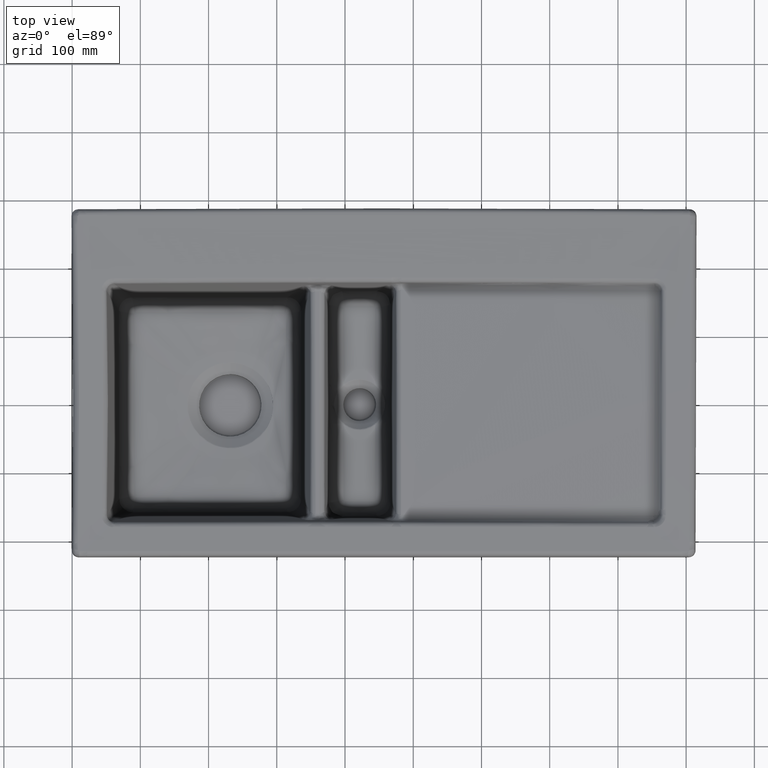
[diagram: clean part render]
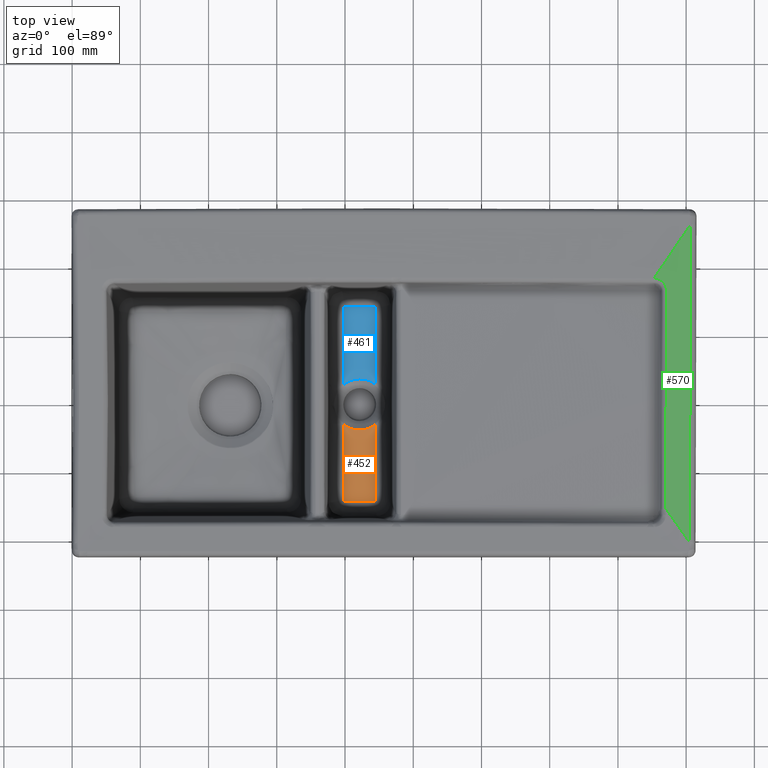
[diagram: same view with three faces highlighted in distinct colors, each labeled with its STEP entity id]
A machine part, top view with three faces highlighted in distinct colors.
Their STEP definitions:

[orange] entity #452 — the highlighted face is a freeform B-spline surface patch.
#258=(
BOUNDED_CURVE()
B_SPLINE_CURVE(3,(#6108,#6109,#6110,#6111),.UNSPECIFIED.,.F.,.F.)
B_SPLINE_CURVE_WITH_KNOTS((4,4),(0.,1.),.UNSPECIFIED.)
CURVE()
GEOMETRIC_REPRESENTATION_ITEM()
RATIONAL_B_SPLINE_CURVE((1.,1.,1.,1.))
REPRESENTATION_ITEM('')
);
#265=(
BOUNDED_CURVE()
B_SPLINE_CURVE(3,(#7132,#7133,#7134,#7135),.UNSPECIFIED.,.F.,.F.)
B_SPLINE_CURVE_WITH_KNOTS((4,4),(0.,1.),.UNSPECIFIED.)
CURVE()
GEOMETRIC_REPRESENTATION_ITEM()
RATIONAL_B_SPLINE_CURVE((1.,1.,1.,1.))
REPRESENTATION_ITEM('')
);
#452=ADVANCED_FACE('',(#908),#757,.F.);
#757=B_SPLINE_SURFACE_WITH_KNOTS('',3,1,((#7439,#7440),(#7441,#7442),(#7443,
#7444),(#7445,#7446),(#7447,#7448),(#7449,#7450),(#7451,#7452)),
 .UNSPECIFIED.,.F.,.F.,.F.,(4,1,1,1,4),(2,2),(0.,0.25,0.5,0.75,1.),(0.,
1.),.UNSPECIFIED.);
#908=FACE_OUTER_BOUND('',#1229,.T.);
#1229=EDGE_LOOP('',(#1605,#1606,#1607,#1608,#1609,#1610));
#1605=ORIENTED_EDGE('',*,*,#3626,.T.);
#1606=ORIENTED_EDGE('',*,*,#3627,.T.);
#1607=ORIENTED_EDGE('',*,*,#3613,.F.);
#1608=ORIENTED_EDGE('',*,*,#3601,.F.);
#1609=ORIENTED_EDGE('',*,*,#3590,.F.);
#1610=ORIENTED_EDGE('',*,*,#3628,.T.);
#3112=VERTEX_POINT('',#6107);
#3113=VERTEX_POINT('',#6112);
#3121=VERTEX_POINT('',#6542);
#3130=VERTEX_POINT('',#7136);
#3141=VERTEX_POINT('',#7429);
#3142=VERTEX_POINT('',#7430);
#3590=EDGE_CURVE('',#3112,#3113,#258,.T.);
#3601=EDGE_CURVE('',#3113,#3121,#4372,.T.);
#3613=EDGE_CURVE('',#3121,#3130,#265,.T.);
#3626=EDGE_CURVE('',#3141,#3142,#4392,.T.);
#3627=EDGE_CURVE('',#3142,#3130,#4393,.T.);
#3628=EDGE_CURVE('',#3112,#3141,#4394,.T.);
#4372=B_SPLINE_CURVE_WITH_KNOTS('',5,(#6523,#6524,#6525,#6526,#6527,#6528,
#6529,#6530,#6531,#6532,#6533,#6534,#6535,#6536,#6537,#6538,#6539,#6540,
#6541),.UNSPECIFIED.,.F.,.F.,(6,1,1,1,1,1,1,1,1,1,1,1,1,1,6),(0.,0.0248236561705599,
0.134479540551747,0.280687386393331,0.390343270774518,0.499999155155705,
0.609655039536893,0.682758962457684,0.792414846838872,0.847242789029465,
0.883794750489861,0.938622692680455,0.966036663775752,0.98431264450595,
1.),.UNSPECIFIED.);
#4392=B_SPLINE_CURVE_WITH_KNOTS('',3,(#7422,#7423,#7424,#7425,#7426,#7427,
#7428),.UNSPECIFIED.,.F.,.F.,(4,1,1,1,4),(0.,0.226356920964131,0.499994669121998,
0.773632417279865,1.),.UNSPECIFIED.);
#4393=B_SPLINE_CURVE_WITH_KNOTS('',3,(#7431,#7432,#7433,#7434),
 .UNSPECIFIED.,.F.,.F.,(4,4),(0.,1.),.UNSPECIFIED.);
#4394=B_SPLINE_CURVE_WITH_KNOTS('',3,(#7435,#7436,#7437,#7438),
 .UNSPECIFIED.,.F.,.F.,(4,4),(0.,1.),.UNSPECIFIED.);
#6107=CARTESIAN_POINT('',(-101.719841872321,-140.408159309172,-122.140214535081));
#6108=CARTESIAN_POINT('',(-101.719841874572,-140.408190980881,-122.140212309552));
#6109=CARTESIAN_POINT('',(-101.719841874535,-103.440049938518,-124.737913268294));
#6110=CARTESIAN_POINT('',(-101.719841874454,-66.471908895654,-127.335614227072));
#6111=CARTESIAN_POINT('',(-101.719841874425,-29.5037678534039,-129.933315185804));
#6112=CARTESIAN_POINT('',(-101.719647689132,-29.4996865122051,-129.924683812961));
#6523=CARTESIAN_POINT('',(-101.719396906025,-29.503738861944,-129.912881583443));
#6524=CARTESIAN_POINT('',(-101.513040038746,-29.6665108037779,-129.917144328314));
#6525=CARTESIAN_POINT('',(-100.38764990228,-30.5377226402636,-129.93845606353));
#6526=CARTESIAN_POINT('',(-97.9565595011306,-32.2350822797533,-129.961304322471));
#6527=CARTESIAN_POINT('',(-94.3758613946092,-34.2258684326724,-129.915966814488));
#6528=CARTESIAN_POINT('',(-89.6129324180382,-36.1084192282851,-129.954515718595));
#6529=CARTESIAN_POINT('',(-83.9270115324353,-37.3258698780678,-129.939347269849));
#6530=CARTESIAN_POINT('',(-78.8982897365385,-37.6447472088639,-129.941538635179));
#6531=CARTESIAN_POINT('',(-74.2164643475943,-37.3979328126476,-129.952349099692));
#6532=CARTESIAN_POINT('',(-69.8240288298119,-36.5996483680741,-129.928943002502));
#6533=CARTESIAN_POINT('',(-66.1378732482018,-35.4839542034875,-129.952353138064));
#6534=CARTESIAN_POINT('',(-63.0214829223471,-34.2036803704275,-129.929079605221));
#6535=CARTESIAN_POINT('',(-60.4055503475251,-32.8558089749276,-129.947937080946));
#6536=CARTESIAN_POINT('',(-58.6795984911942,-31.825794129689,-129.928476093165));
#6537=CARTESIAN_POINT('',(-57.3377390143909,-30.9398988235388,-129.942231116648));
#6538=CARTESIAN_POINT('',(-56.3436621743283,-30.2198715028572,-129.930499859026));
#6539=CARTESIAN_POINT('',(-55.8256276965607,-29.8287252216741,-129.933355099622));
#6540=CARTESIAN_POINT('',(-55.5414455321914,-29.6086068407538,-129.93348598279));
#6541=CARTESIAN_POINT('',(-55.4107538261707,-29.5061128856934,-129.932866854547));
#6542=CARTESIAN_POINT('',(-55.411650988735,-29.4951365362032,-129.933839986546));
#7132=CARTESIAN_POINT('',(-55.412000742716,-29.5045205520715,-129.933259226174));
#7133=CARTESIAN_POINT('',(-55.412000742627,-66.4708160216278,-127.335568520409));
#7134=CARTESIAN_POINT('',(-55.4120007424201,-103.437111491178,-124.737877814645));
#7135=CARTESIAN_POINT('',(-55.4120007425567,-140.403406960786,-122.140187108873));
#7136=CARTESIAN_POINT('',(-55.4120007452332,-140.403375301915,-122.140189333597));
#7422=CARTESIAN_POINT('',(-99.719502961633,-142.403203116575,-122.));
#7423=CARTESIAN_POINT('',(-96.5272959914935,-142.40263337959,-122.));
#7424=CARTESIAN_POINT('',(-89.476102327077,-142.401479354422,-122.));
#7425=CARTESIAN_POINT('',(-78.5659217659005,-142.400050750754,-122.));
#7426=CARTESIAN_POINT('',(-67.6555906480263,-142.399012889387,-122.));
#7427=CARTESIAN_POINT('',(-60.6042462623959,-142.398572855617,-122.));
#7428=CARTESIAN_POINT('',(-57.4118887217839,-142.398420931681,-122.));
#7429=CARTESIAN_POINT('',(-99.7195763630927,-142.403218675193,-122.000000000428));
#7430=CARTESIAN_POINT('',(-57.4118160950062,-142.39843631187,-122.000000000418));
#7431=CARTESIAN_POINT('',(-57.411756721666,-142.398420873461,-122.00000000369));
#7432=CARTESIAN_POINT('',(-56.3108036287416,-142.397950043577,-122.000029728498));
#7433=CARTESIAN_POINT('',(-55.4123820108904,-141.502571980109,-122.062947025583));
#7434=CARTESIAN_POINT('',(-55.4120007649059,-140.403406956622,-122.14018710918));
#7435=CARTESIAN_POINT('',(-101.719841852431,-140.408190976758,-122.140212309858));
#7436=CARTESIAN_POINT('',(-101.719461106688,-141.506544884083,-122.063032767222));
#7437=CARTESIAN_POINT('',(-100.821750298017,-142.402981049948,-122.000029748973));
#7438=CARTESIAN_POINT('',(-99.7196349244578,-142.403203088183,-122.00000000369));
#7439=CARTESIAN_POINT('',(-101.719841874444,-28.6753583609156,-129.991526393403));
#7440=CARTESIAN_POINT('',(-101.719841874559,-142.403566321501,-122.));
#7441=CARTESIAN_POINT('',(-98.7215112826815,-31.1032696140878,-129.991526393403));
#7442=CARTESIAN_POINT('',(-97.8608552848126,-142.402853698149,-122.));
#7443=CARTESIAN_POINT('',(-91.5837716490164,-35.2858162236491,-129.991526393403));
#7444=CARTESIAN_POINT('',(-90.1428819891537,-142.401566664056,-122.));
#7445=CARTESIAN_POINT('',(-78.565921309071,-37.6686288022078,-129.991526393403));
#7446=CARTESIAN_POINT('',(-78.5659217659005,-142.400050750754,-122.));
#7447=CARTESIAN_POINT('',(-65.5480709689097,-35.2858134514791,-129.991526393403));
#7448=CARTESIAN_POINT('',(-66.9889613316171,-142.398949475289,-122.));
#7449=CARTESIAN_POINT('',(-58.4103313348108,-31.1032649938095,-129.991526393403));
#7450=CARTESIAN_POINT('',(-59.2709876138979,-142.39849171687,-122.));
#7451=CARTESIAN_POINT('',(-55.4120007427582,-28.6753528165848,-129.991526393403));
#7452=CARTESIAN_POINT('',(-55.4120007427782,-142.398331943967,-122.));

[blue] entity #461 — the highlighted face is a freeform B-spline surface patch.
#261=(
BOUNDED_CURVE()
B_SPLINE_CURVE(3,(#6482,#6483,#6484,#6485),.UNSPECIFIED.,.F.,.F.)
B_SPLINE_CURVE_WITH_KNOTS((4,4),(0.,1.),.UNSPECIFIED.)
CURVE()
GEOMETRIC_REPRESENTATION_ITEM()
RATIONAL_B_SPLINE_CURVE((1.,1.,1.,1.))
REPRESENTATION_ITEM('')
);
#262=(
BOUNDED_CURVE()
B_SPLINE_CURVE(3,(#6920,#6921,#6922,#6923),.UNSPECIFIED.,.F.,.F.)
B_SPLINE_CURVE_WITH_KNOTS((4,4),(0.,1.),.UNSPECIFIED.)
CURVE()
GEOMETRIC_REPRESENTATION_ITEM()
RATIONAL_B_SPLINE_CURVE((1.,1.,1.,1.))
REPRESENTATION_ITEM('')
);
#461=ADVANCED_FACE('',(#917),#762,.T.);
#762=B_SPLINE_SURFACE_WITH_KNOTS('',3,1,((#8022,#8023),(#8024,#8025),(#8026,
#8027),(#8028,#8029),(#8030,#8031),(#8032,#8033),(#8034,#8035)),
 .UNSPECIFIED.,.F.,.F.,.F.,(4,1,1,1,4),(2,2),(0.,0.25,0.5,0.75,1.),(0.,
1.),.UNSPECIFIED.);
#917=FACE_OUTER_BOUND('',#1238,.T.);
#1238=EDGE_LOOP('',(#1645,#1646,#1647,#1648,#1649,#1650));
#1645=ORIENTED_EDGE('',*,*,#3599,.F.);
#1646=ORIENTED_EDGE('',*,*,#3605,.F.);
#1647=ORIENTED_EDGE('',*,*,#3607,.F.);
#1648=ORIENTED_EDGE('',*,*,#3647,.T.);
#1649=ORIENTED_EDGE('',*,*,#3648,.T.);
#1650=ORIENTED_EDGE('',*,*,#3646,.F.);
#3119=VERTEX_POINT('',#6481);
#3120=VERTEX_POINT('',#6486);
#3124=VERTEX_POINT('',#6584);
#3126=VERTEX_POINT('',#6919);
#3151=VERTEX_POINT('',#7891);
#3153=VERTEX_POINT('',#8014);
#3599=EDGE_CURVE('',#3119,#3120,#261,.T.);
#3605=EDGE_CURVE('',#3124,#3119,#4376,.T.);
#3607=EDGE_CURVE('',#3126,#3124,#262,.T.);
#3646=EDGE_CURVE('',#3120,#3151,#4408,.T.);
#3647=EDGE_CURVE('',#3126,#3153,#4409,.T.);
#3648=EDGE_CURVE('',#3153,#3151,#4410,.T.);
#4376=B_SPLINE_CURVE_WITH_KNOTS('',5,(#6585,#6586,#6587,#6588,#6589,#6590,
#6591,#6592,#6593,#6594,#6595,#6596,#6597,#6598,#6599,#6600,#6601,#6602,
#6603,#6604,#6605,#6606,#6607,#6608,#6609,#6610,#6611),.UNSPECIFIED.,.F.,
 .F.,(6,1,1,1,1,1,1,1,1,5,1,1,1,1,1,1,1,1,6),(0.,0.0156867683323248,0.033960504964547,
0.0613711099128803,0.116192319809547,0.152739793073991,0.207561002970658,
0.317203422763991,0.39029836929288,0.499940789086214,0.646130682143991,
0.71922562867288,0.792320575201769,0.847141785098436,0.88368925836288,0.938510468259547,
0.96592107320788,0.984194809840102,1.),.UNSPECIFIED.);
#4408=B_SPLINE_CURVE_WITH_KNOTS('',3,(#7902,#7903,#7904,#7905,#7906,#7907,
#7908,#7909,#7910),.UNSPECIFIED.,.F.,.F.,(4,1,1,1,1,1,4),(0.,0.125,0.25,
0.375,0.5,0.75,1.),.UNSPECIFIED.);
#4409=B_SPLINE_CURVE_WITH_KNOTS('',3,(#8010,#8011,#8012,#8013),
 .UNSPECIFIED.,.F.,.F.,(4,4),(0.,1.),.UNSPECIFIED.);
#4410=B_SPLINE_CURVE_WITH_KNOTS('',3,(#8015,#8016,#8017,#8018,#8019,#8020,
#8021),.UNSPECIFIED.,.F.,.F.,(4,1,1,1,4),(0.,0.226349825436941,0.499982314853168,
0.773614804269395,1.),.UNSPECIFIED.);
#6481=CARTESIAN_POINT('',(-101.721763070381,29.4994588458397,-129.9340223686));
#6482=CARTESIAN_POINT('',(-101.719841874245,29.5040029903322,-129.933869253652));
#6483=CARTESIAN_POINT('',(-101.719841877377,66.7998282456014,-127.335561143578));
#6484=CARTESIAN_POINT('',(-101.719841880553,104.095653500487,-124.737253033529));
#6485=CARTESIAN_POINT('',(-101.719841883684,141.391478755678,-122.138944923459));
#6486=CARTESIAN_POINT('',(-101.719841881399,141.391447096811,-122.138947129055));
#6584=CARTESIAN_POINT('',(-55.4111954780957,29.5038953414851,-129.933749624806));
#6585=CARTESIAN_POINT('',(-55.4101632778936,29.5067550765156,-129.933379861192));
#6586=CARTESIAN_POINT('',(-55.5407338151681,29.6094285203575,-129.933971599667));
#6587=CARTESIAN_POINT('',(-55.8245446357716,29.8300498003373,-129.933751005369));
#6588=CARTESIAN_POINT('',(-56.3415489849454,30.2225939799143,-129.930657140301));
#6589=CARTESIAN_POINT('',(-57.3332943137968,30.9462978517093,-129.942349491628));
#6590=CARTESIAN_POINT('',(-58.6773264242563,31.829595972303,-129.928415497302));
#6591=CARTESIAN_POINT('',(-60.4016653496536,32.86246864426,-129.948166474974));
#6592=CARTESIAN_POINT('',(-63.021516199261,34.2048209633518,-129.929217562027));
#6593=CARTESIAN_POINT('',(-66.1354676160631,35.488935146331,-129.952800047484));
#6594=CARTESIAN_POINT('',(-69.826516883535,36.5958851963371,-129.929299096004));
#6595=CARTESIAN_POINT('',(-73.1627953848058,37.201894966163,-129.948277584383));
#6596=CARTESIAN_POINT('',(-75.8740735091135,37.4455378298082,-129.946318231546));
#6597=CARTESIAN_POINT('',(-77.5562896005995,37.5037930966284,-129.944899012501));
#6598=CARTESIAN_POINT('',(-78.5659213086465,37.5048104812571,-129.944305147031));
#6599=CARTESIAN_POINT('',(-79.9120969193759,37.5061669940955,-129.943513326404));
#6600=CARTESIAN_POINT('',(-81.9321658105511,37.4177063621174,-129.943012704685));
#6601=CARTESIAN_POINT('',(-84.6609216871854,37.1181420791534,-129.946049954968));
#6602=CARTESIAN_POINT('',(-88.0174923597861,36.4220071747067,-129.93529584078));
#6603=CARTESIAN_POINT('',(-91.6868194596184,35.2025670958994,-129.948527787882));
#6604=CARTESIAN_POINT('',(-94.4469962337411,34.0280307029931,-129.930976569616));
#6605=CARTESIAN_POINT('',(-96.7258512031485,32.8546015445686,-129.949938400319));
#6606=CARTESIAN_POINT('',(-98.4516398200546,31.825206143404,-129.928033411179));
#6607=CARTESIAN_POINT('',(-99.7951889780643,30.9389866000143,-129.943743662952));
#6608=CARTESIAN_POINT('',(-100.790123360086,30.2183807979451,-129.930573885425));
#6609=CARTESIAN_POINT('',(-101.30924843247,29.8264762792645,-129.933807557509));
#6610=CARTESIAN_POINT('',(-101.594444546119,29.6055497624545,-129.93406432257));
#6611=CARTESIAN_POINT('',(-101.726126812027,29.5022488644301,-129.933456707269));
#6919=CARTESIAN_POINT('',(-55.4120007452095,141.400896839059,-122.138993325916));
#6920=CARTESIAN_POINT('',(-55.4120007429122,141.400929692985,-122.138991037268));
#6921=CARTESIAN_POINT('',(-55.4120007429319,104.102091685333,-124.737276168924));
#6922=CARTESIAN_POINT('',(-55.4120007429766,66.8032536774609,-127.335561300595));
#6923=CARTESIAN_POINT('',(-55.4120007429767,29.5044156699205,-129.933846432241));
#7891=CARTESIAN_POINT('',(-99.7206211879087,143.386559231637,-122.000000000636));
#7902=CARTESIAN_POINT('',(-101.719841883378,141.391478751783,-122.13894492373));
#7903=CARTESIAN_POINT('',(-101.719796160576,141.522119603666,-122.129843534669));
#7904=CARTESIAN_POINT('',(-101.693792768427,141.78330906183,-122.111664714535));
#7905=CARTESIAN_POINT('',(-101.580289507033,142.160504180134,-122.085439387113));
#7906=CARTESIAN_POINT('',(-101.395525991175,142.508798142204,-122.061227960748));
#7907=CARTESIAN_POINT('',(-101.063623433792,142.916006591488,-122.032898457463));
#7908=CARTESIAN_POINT('',(-100.506080572074,143.282829558101,-122.007273354005));
#7909=CARTESIAN_POINT('',(-99.9825923642268,143.386342574508,-122.000006840227));
#7910=CARTESIAN_POINT('',(-99.7206723655752,143.386528564325,-121.99999999999));
#8010=CARTESIAN_POINT('',(-55.4120007658769,141.400929688476,-122.138991037599));
#8011=CARTESIAN_POINT('',(-55.4123820489301,142.500263995609,-122.062410282929));
#8012=CARTESIAN_POINT('',(-56.3109256587701,143.395695563886,-122.000029517203));
#8013=CARTESIAN_POINT('',(-57.41200892028,143.396027313644,-122.000000003688));
#8014=CARTESIAN_POINT('',(-57.4120631925275,143.395983628543,-122.000000000818));
#8015=CARTESIAN_POINT('',(-57.412141725927,143.39602735548,-122.));
#8016=CARTESIAN_POINT('',(-60.6038298963109,143.395774032877,-122.));
#8017=CARTESIAN_POINT('',(-67.6541483392831,143.394950540795,-122.));
#8018=CARTESIAN_POINT('',(-78.5637968647959,143.392853633783,-122.));
#8019=CARTESIAN_POINT('',(-89.4748682688088,143.389961022736,-122.));
#8020=CARTESIAN_POINT('',(-96.5273740393778,143.387683668943,-122.));
#8021=CARTESIAN_POINT('',(-99.7205491601054,143.38657949935,-122.));
#8022=CARTESIAN_POINT('',(-55.4120007429146,143.396170369374,-122.));
#8023=CARTESIAN_POINT('',(-55.4120007429564,28.6674301188065,-129.992151924556));
#8024=CARTESIAN_POINT('',(-59.2703560103238,143.395925030638,-122.));
#8025=CARTESIAN_POINT('',(-58.4102633481168,31.0955319291932,-129.992151924556));
#8026=CARTESIAN_POINT('',(-66.9873601101577,143.395078701928,-122.));
#8027=CARTESIAN_POINT('',(-65.547956613534,35.2784064576841,-129.992151924556));
#8028=CARTESIAN_POINT('',(-78.5637968647959,143.392853633783,-122.));
#8029=CARTESIAN_POINT('',(-78.5659192244427,37.6614049721977,-129.992151924556));
#8030=CARTESIAN_POINT('',(-90.1412141341624,143.389784369194,-122.));
#8031=CARTESIAN_POINT('',(-91.5838827972588,35.2784012639661,-129.992151924556));
#8032=CARTESIAN_POINT('',(-97.860179263453,143.387249647594,-122.));
#8033=CARTESIAN_POINT('',(-98.7215779864876,31.0955234186726,-129.992151924556));
#8034=CARTESIAN_POINT('',(-101.719841883833,143.385878713597,-122.));
#8035=CARTESIAN_POINT('',(-101.719841874187,28.6674200227238,-129.992151924556));

[green] entity #570 — the highlighted face is a freeform B-spline surface patch.
#340=(
BOUNDED_CURVE()
B_SPLINE_CURVE(3,(#12311,#12312,#12313,#12314,#12315,#12316,#12317,#12318,
#12319,#12320,#12321,#12322,#12323,#12324),.UNSPECIFIED.,.F.,.F.)
B_SPLINE_CURVE_WITH_KNOTS((4,2,2,2,2,2,4),(0.,0.125,0.25,0.5,0.75,0.875,
1.),.UNSPECIFIED.)
CURVE()
GEOMETRIC_REPRESENTATION_ITEM()
RATIONAL_B_SPLINE_CURVE((1.,1.,1.,1.,1.,1.,1.,1.,1.,1.,1.,1.,1.,1.))
REPRESENTATION_ITEM('')
);
#342=(
BOUNDED_CURVE()
B_SPLINE_CURVE(3,(#12371,#12372,#12373,#12374,#12375,#12376,#12377,#12378,
#12379,#12380),.UNSPECIFIED.,.F.,.F.)
B_SPLINE_CURVE_WITH_KNOTS((4,2,2,2,4),(0.,0.250000000000001,0.375000000000001,
0.500000000000001,1.),.UNSPECIFIED.)
CURVE()
GEOMETRIC_REPRESENTATION_ITEM()
RATIONAL_B_SPLINE_CURVE((1.,1.,1.,1.,1.,1.,1.,1.,1.,1.))
REPRESENTATION_ITEM('')
);
#343=(
BOUNDED_CURVE()
B_SPLINE_CURVE(3,(#12382,#12383,#12384,#12385),.UNSPECIFIED.,.F.,.F.)
B_SPLINE_CURVE_WITH_KNOTS((4,4),(0.,1.),.UNSPECIFIED.)
CURVE()
GEOMETRIC_REPRESENTATION_ITEM()
RATIONAL_B_SPLINE_CURVE((1.,1.,1.,1.))
REPRESENTATION_ITEM('')
);
#570=ADVANCED_FACE('',(#1025),#803,.T.);
#803=B_SPLINE_SURFACE_WITH_KNOTS('',3,1,((#13382,#13383),(#13384,#13385),
(#13386,#13387),(#13388,#13389),(#13390,#13391),(#13392,#13393),(#13394,
#13395),(#13396,#13397),(#13398,#13399),(#13400,#13401),(#13402,#13403),
(#13404,#13405),(#13406,#13407),(#13408,#13409),(#13410,#13411),(#13412,
#13413),(#13414,#13415),(#13416,#13417),(#13418,#13419)),.UNSPECIFIED.,
 .F.,.F.,.F.,(4,1,1,1,1,1,1,1,1,1,1,1,1,1,1,1,4),(2,2),(0.,0.0260654083214512,
0.0936718462912706,0.12747506527618,0.16127828426109,0.195081503246,0.228884722230909,
0.262687941215819,0.296491160200729,0.364097598170548,0.499310474110187,
0.634523350049826,0.769736225989465,0.837342663959284,0.904949101929103,
0.972555539898923,1.),(0.,1.),.UNSPECIFIED.);
#1025=FACE_OUTER_BOUND('',#1348,.T.);
#1348=EDGE_LOOP('',(#2144,#2145,#2146,#2147,#2148,#2149));
#2144=ORIENTED_EDGE('',*,*,#3843,.F.);
#2145=ORIENTED_EDGE('',*,*,#3841,.F.);
#2146=ORIENTED_EDGE('',*,*,#3900,.T.);
#2147=ORIENTED_EDGE('',*,*,#3901,.T.);
#2148=ORIENTED_EDGE('',*,*,#3897,.F.);
#2149=ORIENTED_EDGE('',*,*,#3844,.F.);
#3260=VERTEX_POINT('',#12218);
#3261=VERTEX_POINT('',#12310);
#3262=VERTEX_POINT('',#12325);
#3263=VERTEX_POINT('',#12381);
#3295=VERTEX_POINT('',#13317);
#3297=VERTEX_POINT('',#13365);
#3841=EDGE_CURVE('',#3261,#3262,#340,.T.);
#3843=EDGE_CURVE('',#3262,#3263,#342,.T.);
#3844=EDGE_CURVE('',#3263,#3260,#343,.T.);
#3897=EDGE_CURVE('',#3260,#3295,#4564,.T.);
#3900=EDGE_CURVE('',#3261,#3297,#4567,.T.);
#3901=EDGE_CURVE('',#3297,#3295,#4568,.T.);
#4564=B_SPLINE_CURVE_WITH_KNOTS('',3,(#13312,#13313,#13314,#13315,#13316),
 .UNSPECIFIED.,.F.,.F.,(4,1,4),(0.,0.500003443657999,1.),.UNSPECIFIED.);
#4567=B_SPLINE_CURVE_WITH_KNOTS('',3,(#13361,#13362,#13363,#13364),
 .UNSPECIFIED.,.F.,.F.,(4,4),(0.,1.),.UNSPECIFIED.);
#4568=B_SPLINE_CURVE_WITH_KNOTS('',3,(#13366,#13367,#13368,#13369,#13370,
#13371,#13372,#13373,#13374,#13375,#13376,#13377,#13378,#13379,#13380,#13381),
 .UNSPECIFIED.,.F.,.F.,(4,2,2,2,2,2,2,4),(0.,0.125,0.25,0.5,0.75,0.8125,
0.875,1.),.UNSPECIFIED.);
#12218=CARTESIAN_POINT('',(352.877020419543,182.612049514514,-1.17300279970422));
#12310=CARTESIAN_POINT('',(370.200609025752,-154.963753242242,-0.428976760373357));
#12311=CARTESIAN_POINT('',(370.200460715452,-154.962535050789,-0.430924738893923));
#12312=CARTESIAN_POINT('',(370.239708189223,-141.67936665581,-0.197254158676335));
#12313=CARTESIAN_POINT('',(370.282052406876,-128.334245980281,0.0790681166048995));
#12314=CARTESIAN_POINT('',(370.362079086811,-101.671693026669,0.478673723965898));
#12315=CARTESIAN_POINT('',(370.401377578239,-88.3470690072719,0.63835897912898));
#12316=CARTESIAN_POINT('',(370.520503947291,-48.3655566203226,1.02773870786753));
#12317=CARTESIAN_POINT('',(370.599894197034,-21.7084321237972,1.1526597910208));
#12318=CARTESIAN_POINT('',(370.756721671459,31.6065436625468,1.11839687199155));
#12319=CARTESIAN_POINT('',(370.83424269657,58.2642479274439,0.95997125181238));
#12320=CARTESIAN_POINT('',(370.950526765843,98.2452344720003,0.522477328784162));
#12321=CARTESIAN_POINT('',(370.989557478513,111.573135159979,0.345714166109794));
#12322=CARTESIAN_POINT('',(371.065113679737,138.235182556852,-0.0996475798706851));
#12323=CARTESIAN_POINT('',(371.103712525354,151.559064310147,-0.38583378610891));
#12324=CARTESIAN_POINT('',(371.14289232539,164.833155336653,-0.592958659697426));
#12325=CARTESIAN_POINT('',(371.14289232539,164.833155336653,-0.592958659697427));
#12371=CARTESIAN_POINT('',(371.14289232539,164.833155336653,-0.59295865969743));
#12372=CARTESIAN_POINT('',(371.149869793643,167.197115731761,-0.629845177649138));
#12373=CARTESIAN_POINT('',(370.689398426371,169.497254096509,-0.672234134134189));
#12374=CARTESIAN_POINT('',(369.357238892527,172.720668821054,-0.741031252808693));
#12375=CARTESIAN_POINT('',(368.800042032592,173.762689694504,-0.765026018362008));
#12376=CARTESIAN_POINT('',(367.511980577132,175.689024146849,-0.813353888263778));
#12377=CARTESIAN_POINT('',(366.776899980598,176.585914670423,-0.837941022686392));
#12378=CARTESIAN_POINT('',(362.630847687248,180.727809277022,-0.96435638209342));
#12379=CARTESIAN_POINT('',(358.04975101196,182.621794695281,-1.06962405617827));
#12380=CARTESIAN_POINT('',(353.346847556061,182.61571197809,-1.16363289779154));
#12381=CARTESIAN_POINT('',(353.346847111947,182.61556122662,-1.16363168662963));
#12382=CARTESIAN_POINT('',(353.346847556061,182.61571197809,-1.16363289779154));
#12383=CARTESIAN_POINT('',(353.190438404299,182.615509679096,-1.16675944361855));
#12384=CARTESIAN_POINT('',(353.033894522738,182.613205725372,-1.16987353611397));
#12385=CARTESIAN_POINT('',(352.877257938028,182.608782439619,-1.17297460897861));
#13312=CARTESIAN_POINT('',(352.876887815425,182.615315689795,-1.17302888540036));
#13313=CARTESIAN_POINT('',(361.776812279717,195.71832729503,-1.10107555723114));
#13314=CARTESIAN_POINT('',(379.576543100034,221.925692272232,-0.692847347386483));
#13315=CARTESIAN_POINT('',(397.37627225535,248.132492066349,-0.347483286550251));
#13316=CARTESIAN_POINT('',(406.27607571841,261.235863353462,-0.168446726815064));
#13317=CARTESIAN_POINT('',(406.276330232018,261.236238079299,-0.16844160678528));
#13361=CARTESIAN_POINT('',(370.2004607696,-154.962535127108,-0.430924739149007));
#13362=CARTESIAN_POINT('',(381.769183109196,-171.26794359561,-0.485423001262652));
#13363=CARTESIAN_POINT('',(393.337898911528,-187.575571085894,-0.403026812361808));
#13364=CARTESIAN_POINT('',(404.906613743804,-203.883527851414,-0.177469660752489));
#13365=CARTESIAN_POINT('',(404.906485622293,-203.883863132133,-0.176048470193212));
#13366=CARTESIAN_POINT('',(404.905632648553,-203.882144840495,-0.177488789120816));
#13367=CARTESIAN_POINT('',(404.962737735356,-184.501138487701,-0.169427523712276));
#13368=CARTESIAN_POINT('',(405.019839864485,-165.121136090945,0.068469506998786));
#13369=CARTESIAN_POINT('',(405.134029840009,-126.365979456944,0.802810008554106));
#13370=CARTESIAN_POINT('',(405.191128011626,-106.987320402766,1.11383721779527));
#13371=CARTESIAN_POINT('',(405.362432784631,-48.8478611861913,1.7702845552177));
#13372=CARTESIAN_POINT('',(405.476645382019,-10.0850257256626,1.92573772947085));
#13373=CARTESIAN_POINT('',(405.705064499917,67.438582449407,1.63466242326517));
#13374=CARTESIAN_POINT('',(405.819270398183,106.199143955648,1.19128765524849));
#13375=CARTESIAN_POINT('',(405.962007964413,154.643122617419,0.274885366387722));
#13376=CARTESIAN_POINT('',(405.990555999311,164.332095376254,0.0924185426698274));
#13377=CARTESIAN_POINT('',(406.047656843041,183.711661324078,-0.139559233560636));
#13378=CARTESIAN_POINT('',(406.076209192454,193.402098603462,-0.180325961167634));
#13379=CARTESIAN_POINT('',(406.161867097263,222.473701321524,-0.193307644577512));
#13380=CARTESIAN_POINT('',(406.218972515761,241.854820287744,-0.17112812746937));
#13381=CARTESIAN_POINT('',(406.276077719389,261.235866299546,-0.16844668656843));
#13382=CARTESIAN_POINT('',(352.797577732615,264.027495070387,-1.23779732801973));
#13383=CARTESIAN_POINT('',(406.604092846818,264.027495070387,-0.161667025735668));
#13384=CARTESIAN_POINT('',(352.785528823669,259.937580235418,-1.23835331720297));
#13385=CARTESIAN_POINT('',(406.592043937872,259.937580235418,-0.162223014918913));
#13386=CARTESIAN_POINT('',(352.742228393947,245.239563121561,-1.24049763252177));
#13387=CARTESIAN_POINT('',(406.54874350815,245.239563121561,-0.164367330237706));
#13388=CARTESIAN_POINT('',(352.683302270451,225.237517479744,-1.24118131940387));
#13389=CARTESIAN_POINT('',(406.489817384653,225.237517479744,-0.165051017119806));
#13390=CARTESIAN_POINT('',(352.620798790325,204.021164047743,-1.2613147592422));
#13391=CARTESIAN_POINT('',(406.427313904528,204.021164047743,-0.185184456958138));
#13392=CARTESIAN_POINT('',(352.573921656625,188.109060717403,-1.23690019060945));
#13393=CARTESIAN_POINT('',(406.380436770829,188.109060717403,-0.160769888325391));
#13394=CARTESIAN_POINT('',(352.527046504819,172.19763021105,-1.08930159854383));
#13395=CARTESIAN_POINT('',(406.333561619022,172.19763021105,-0.0131712962597721));
#13396=CARTESIAN_POINT('',(352.480175071104,156.287461757377,-0.830283783084016));
#13397=CARTESIAN_POINT('',(406.286690185307,156.287461757377,0.245846519200047));
#13398=CARTESIAN_POINT('',(352.433306510015,140.37826830067,-0.521656826771501));
#13399=CARTESIAN_POINT('',(406.239821624218,140.37826830067,0.554473475512561));
#13400=CARTESIAN_POINT('',(352.370813772944,119.165561492863,-0.139697940112016));
#13401=CARTESIAN_POINT('',(406.177328887147,119.165561492863,0.936432362172046));
#13402=CARTESIAN_POINT('',(352.261443522691,82.0406225411933,0.375152068092258));
#13403=CARTESIAN_POINT('',(406.067958636894,82.0406225411933,1.45128237037632));
#13404=CARTESIAN_POINT('',(352.105189686159,29.0013899233641,0.797702877584098));
#13405=CARTESIAN_POINT('',(405.911704800362,29.0013899233641,1.87383317986816));
#13406=CARTESIAN_POINT('',(351.917678841961,-34.6478074540686,0.774006213178297));
#13407=CARTESIAN_POINT('',(405.724193956164,-34.6478074540687,1.85013651546236));
#13408=CARTESIAN_POINT('',(351.761426055646,-87.6866835777533,0.309427795960902));
#13409=CARTESIAN_POINT('',(405.567941169849,-87.6866835777533,1.38555809824496));
#13410=CARTESIAN_POINT('',(351.636432730312,-130.114762173478,-0.305790365791184));
#13411=CARTESIAN_POINT('',(405.442947844515,-130.114762173478,0.770339936492878));
#13412=CARTESIAN_POINT('',(351.542698290771,-161.932238487567,-0.978980559543478));
#13413=CARTESIAN_POINT('',(405.349213404974,-161.932238487567,0.0971497427405842));
#13414=CARTESIAN_POINT('',(351.467511750659,-187.453764726356,-1.2338570749601));
#13415=CARTESIAN_POINT('',(405.274026864862,-187.453764726356,-0.157726772676041));
#13416=CARTESIAN_POINT('',(351.423574024981,-202.368107331538,-1.24811988352948));
#13417=CARTESIAN_POINT('',(405.230089139184,-202.368107331538,-0.171989581245418));
#13418=CARTESIAN_POINT('',(351.410887640646,-206.674408567161,-1.24759712099545));
#13419=CARTESIAN_POINT('',(405.217402754849,-206.674408567161,-0.17146681871139));